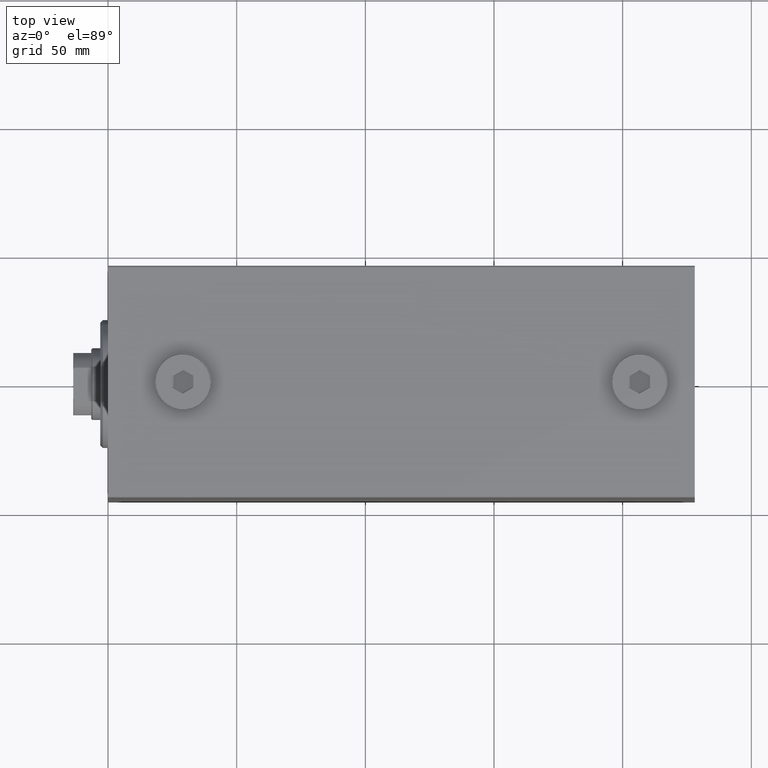
[diagram: clean part render]
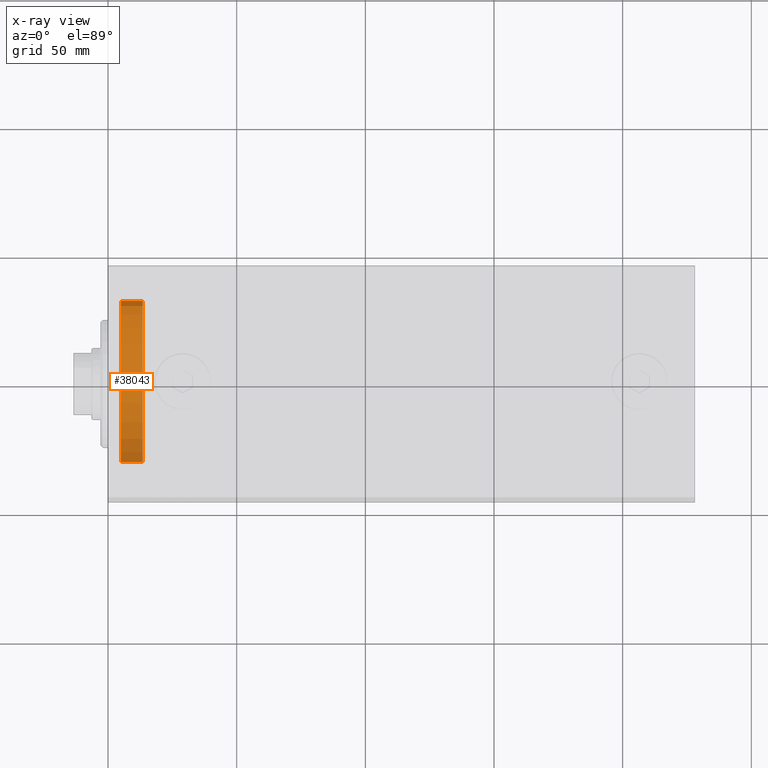
[diagram: x-ray — body ghosted, one internal face saturated and labeled with its STEP entity id]
A machine part, top view, then the same camera in x-ray: the body is ghosted and one INTERNAL B-rep face — a face not visible from any outside direction — is saturated and labeled: STEP entity #38043.
In plain terms, the highlighted cylindrical surface (partial cylindrical patch) has radius 32.5 mm, axis along (-1, 0, 0).
Its self-contained STEP definition (entity closure, byte-faithful):
#636 = DIRECTION ( 'NONE',  ( 1.000000000000000000, -0.000000000000000000, -0.000000000000000000 ) ) ;
#1082 = DIRECTION ( 'NONE',  ( 0.000000000000000000, 0.000000000000000000, 1.000000000000000000 ) ) ;
#2316 = VERTEX_POINT ( 'NONE', #44700 ) ;
#2658 = CYLINDRICAL_SURFACE ( 'NONE', #40048, 32.50000000000000000 ) ;
#2794 = EDGE_CURVE ( 'NONE', #2316, #44357, #17635, .T. ) ;
#3828 = CARTESIAN_POINT ( 'NONE',  ( -13.50000000000000178, 0.000000000000000000, 0.000000000000000000 ) ) ;
#3883 = DIRECTION ( 'NONE',  ( 1.000000000000000000, -0.000000000000000000, -0.000000000000000000 ) ) ;
#5011 = VECTOR ( 'NONE', #636, 1000.000000000000000 ) ;
#6903 = AXIS2_PLACEMENT_3D ( 'NONE', #3828, #21689, #1082 ) ;
#7148 = ORIENTED_EDGE ( 'NONE', *, *, #29995, .F. ) ;
#9839 = VECTOR ( 'NONE', #3883, 1000.000000000000000 ) ;
#10053 = ORIENTED_EDGE ( 'NONE', *, *, #17689, .T. ) ;
#10091 = CARTESIAN_POINT ( 'NONE',  ( -5.000000000000000000, 0.000000000000000000, -32.50000000000000000 ) ) ;
#10315 = CARTESIAN_POINT ( 'NONE',  ( -13.50000000000000178, 0.000000000000000000, -32.50000000000000000 ) ) ;
#13610 = CARTESIAN_POINT ( 'NONE',  ( -13.50000000000000178, 3.980102097228898626E-15, 32.50000000000000000 ) ) ;
#16283 = ORIENTED_EDGE ( 'NONE', *, *, #2794, .F. ) ;
#16634 = DIRECTION ( 'NONE',  ( 0.000000000000000000, 0.000000000000000000, -1.000000000000000000 ) ) ;
#17140 = CARTESIAN_POINT ( 'NONE',  ( -13.50000000000000178, 3.980102097228898626E-15, 32.50000000000000000 ) ) ;
#17635 = LINE ( 'NONE', #10315, #9839 ) ;
#17689 = EDGE_CURVE ( 'NONE', #26768, #18317, #34550, .T. ) ;
#18317 = VERTEX_POINT ( 'NONE', #38278 ) ;
#18394 = EDGE_LOOP ( 'NONE', ( #7148, #10053, #37657, #16283 ) ) ;
#20056 = DIRECTION ( 'NONE',  ( 1.000000000000000000, -0.000000000000000000, -0.000000000000000000 ) ) ;
#21689 = DIRECTION ( 'NONE',  ( -1.000000000000000000, 0.000000000000000000, 0.000000000000000000 ) ) ;
#22931 = CIRCLE ( 'NONE', #36081, 32.50000000000000000 ) ;
#24827 = DIRECTION ( 'NONE',  ( 0.000000000000000000, 0.000000000000000000, 1.000000000000000000 ) ) ;
#26768 = VERTEX_POINT ( 'NONE', #13610 ) ;
#28106 = EDGE_CURVE ( 'NONE', #18317, #44357, #22931, .T. ) ;
#29995 = EDGE_CURVE ( 'NONE', #26768, #2316, #38363, .T. ) ;
#33817 = FACE_OUTER_BOUND ( 'NONE', #18394, .T. ) ;
#34550 = LINE ( 'NONE', #17140, #5011 ) ;
#36081 = AXIS2_PLACEMENT_3D ( 'NONE', #42250, #42709, #24827 ) ;
#37657 = ORIENTED_EDGE ( 'NONE', *, *, #28106, .T. ) ;
#38043 = ADVANCED_FACE ( 'NONE', ( #33817 ), #2658, .T. ) ;
#38278 = CARTESIAN_POINT ( 'NONE',  ( -5.000000000000000000, 3.980102097228898626E-15, 32.50000000000000000 ) ) ;
#38363 = CIRCLE ( 'NONE', #6903, 32.50000000000000000 ) ;
#40048 = AXIS2_PLACEMENT_3D ( 'NONE', #43931, #20056, #16634 ) ;
#42250 = CARTESIAN_POINT ( 'NONE',  ( -5.000000000000000000, 0.000000000000000000, 0.000000000000000000 ) ) ;
#42709 = DIRECTION ( 'NONE',  ( -1.000000000000000000, 0.000000000000000000, 0.000000000000000000 ) ) ;
#43931 = CARTESIAN_POINT ( 'NONE',  ( -13.50000000000000178, 0.000000000000000000, 0.000000000000000000 ) ) ;
#44357 = VERTEX_POINT ( 'NONE', #10091 ) ;
#44700 = CARTESIAN_POINT ( 'NONE',  ( -13.50000000000000178, 0.000000000000000000, -32.50000000000000000 ) ) ;